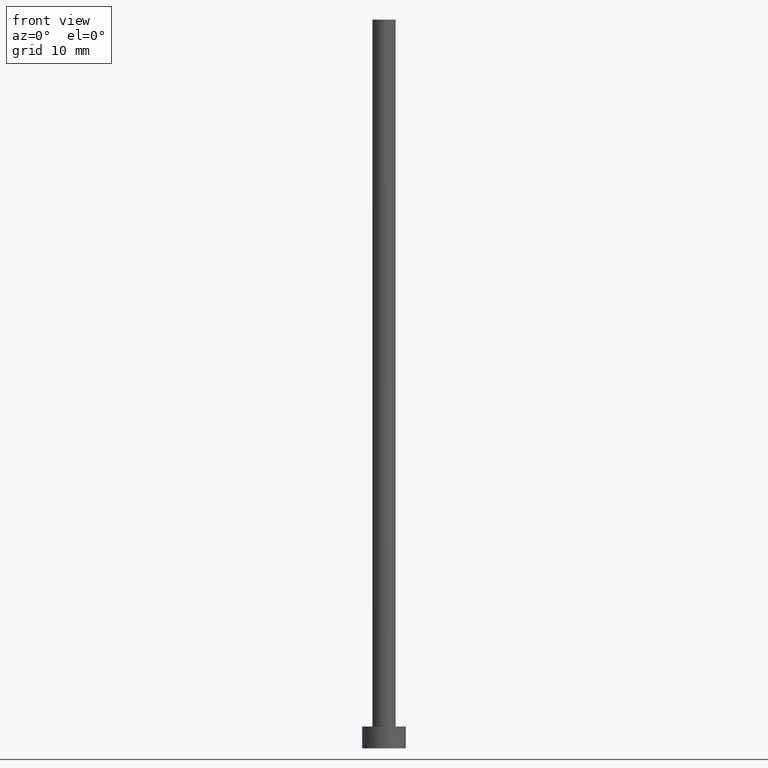
[diagram: clean part render]
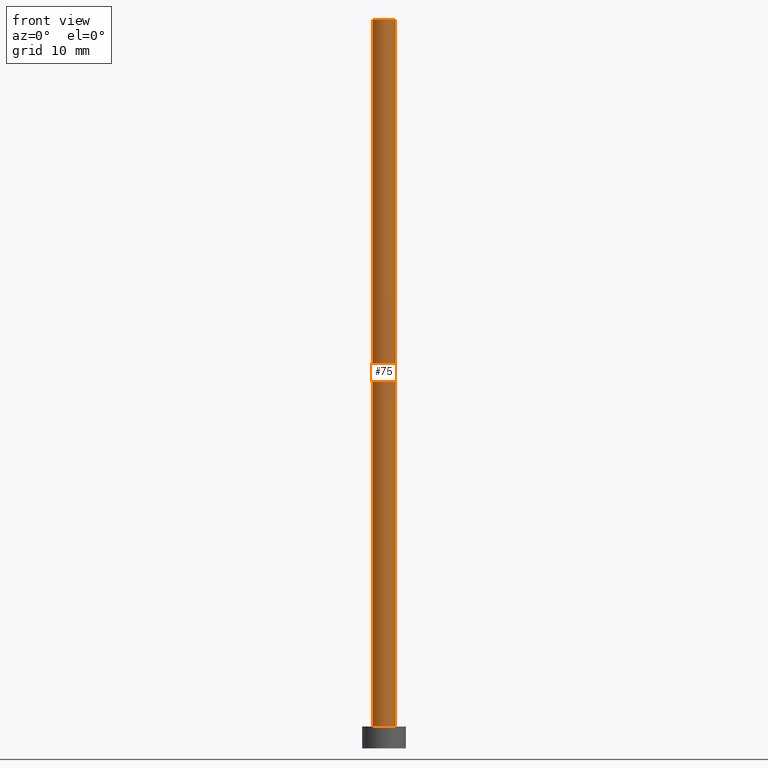
[diagram: same view with one face highlighted and labeled with its STEP entity id]
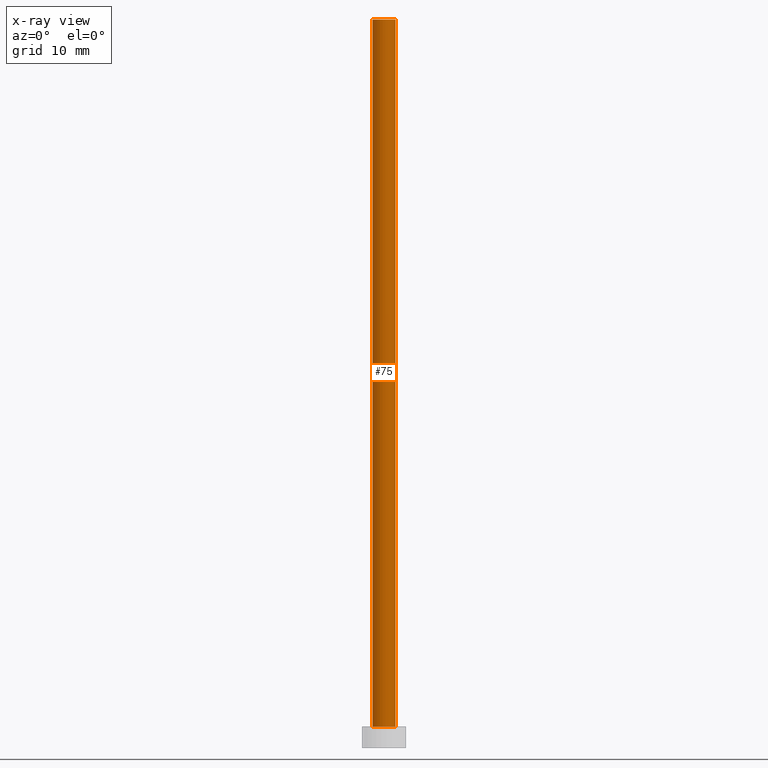
[diagram: x-ray of the same camera — body ghosted, the highlighted face saturated]
A machine part, front view. The second image highlights one B-rep face of the part: STEP entity #75.
The next image is the same camera in x-ray: the body ghosted, the highlighted face saturated — about 0% of this face is hidden behind the body in this view.
In plain terms, the highlighted cylindrical surface (edge-blend (fillet) strip) has radius 1.6 mm, axis along (-0, -0, -1).
Its self-contained STEP definition (entity closure, byte-faithful):
#1 = CARTESIAN_POINT ( 'NONE',  ( 0.000000000000000000, 0.000000000000000000, 3.000000000000000000 ) ) ;
#5 = LINE ( 'NONE', #207, #225 ) ;
#16 = DIRECTION ( 'NONE',  ( 0.000000000000000000, 0.000000000000000000, 1.000000000000000000 ) ) ;
#24 = VERTEX_POINT ( 'NONE', #160 ) ;
#29 = VERTEX_POINT ( 'NONE', #62 ) ;
#30 = AXIS2_PLACEMENT_3D ( 'NONE', #99, #64, #104 ) ;
#31 = CYLINDRICAL_SURFACE ( 'NONE', #30, 1.600000000000000089 ) ;
#47 = AXIS2_PLACEMENT_3D ( 'NONE', #193, #16, #237 ) ;
#52 = EDGE_CURVE ( 'NONE', #24, #161, #5, .T. ) ;
#58 = CIRCLE ( 'NONE', #189, 1.600000000000000089 ) ;
#62 = CARTESIAN_POINT ( 'NONE',  ( -1.600000000000000089, 0.000000000000000000, 3.000000000000000000 ) ) ;
#64 = DIRECTION ( 'NONE',  ( -0.000000000000000000, -0.000000000000000000, -1.000000000000000000 ) ) ;
#66 = ORIENTED_EDGE ( 'NONE', *, *, #196, .F. ) ;
#75 = ADVANCED_FACE ( 'NONE', ( #184 ), #31, .T. ) ;
#81 = VECTOR ( 'NONE', #128, 1000.000000000000000 ) ;
#86 = CIRCLE ( 'NONE', #47, 1.600000000000000089 ) ;
#88 = CARTESIAN_POINT ( 'NONE',  ( -1.600000000000000089, 0.000000000000000000, 100.0000000000000000 ) ) ;
#99 = CARTESIAN_POINT ( 'NONE',  ( 0.000000000000000000, 0.000000000000000000, 100.0000000000000000 ) ) ;
#103 = ORIENTED_EDGE ( 'NONE', *, *, #156, .T. ) ;
#104 = DIRECTION ( 'NONE',  ( -1.000000000000000000, 0.000000000000000000, 0.000000000000000000 ) ) ;
#110 = VERTEX_POINT ( 'NONE', #88 ) ;
#123 = DIRECTION ( 'NONE',  ( -0.000000000000000000, -0.000000000000000000, -1.000000000000000000 ) ) ;
#128 = DIRECTION ( 'NONE',  ( -0.000000000000000000, -0.000000000000000000, -1.000000000000000000 ) ) ;
#129 = LINE ( 'NONE', #233, #81 ) ;
#142 = ORIENTED_EDGE ( 'NONE', *, *, #222, .T. ) ;
#149 = DIRECTION ( 'NONE',  ( 0.000000000000000000, 0.000000000000000000, 1.000000000000000000 ) ) ;
#150 = DIRECTION ( 'NONE',  ( 1.000000000000000000, 0.000000000000000000, 0.000000000000000000 ) ) ;
#151 = CARTESIAN_POINT ( 'NONE',  ( 1.600000000000000089, 1.959434878635764737E-16, 3.000000000000000000 ) ) ;
#156 = EDGE_CURVE ( 'NONE', #29, #161, #58, .T. ) ;
#159 = ORIENTED_EDGE ( 'NONE', *, *, #52, .F. ) ;
#160 = CARTESIAN_POINT ( 'NONE',  ( 1.600000000000000089, 1.959434878635764737E-16, 100.0000000000000000 ) ) ;
#161 = VERTEX_POINT ( 'NONE', #151 ) ;
#162 = EDGE_LOOP ( 'NONE', ( #159, #66, #142, #103 ) ) ;
#184 = FACE_OUTER_BOUND ( 'NONE', #162, .T. ) ;
#189 = AXIS2_PLACEMENT_3D ( 'NONE', #1, #149, #150 ) ;
#193 = CARTESIAN_POINT ( 'NONE',  ( 0.000000000000000000, 0.000000000000000000, 100.0000000000000000 ) ) ;
#196 = EDGE_CURVE ( 'NONE', #110, #24, #86, .T. ) ;
#207 = CARTESIAN_POINT ( 'NONE',  ( 1.600000000000000089, 1.959434878635764737E-16, 100.0000000000000000 ) ) ;
#222 = EDGE_CURVE ( 'NONE', #110, #29, #129, .T. ) ;
#225 = VECTOR ( 'NONE', #123, 1000.000000000000000 ) ;
#233 = CARTESIAN_POINT ( 'NONE',  ( -1.600000000000000089, 0.000000000000000000, 100.0000000000000000 ) ) ;
#237 = DIRECTION ( 'NONE',  ( 1.000000000000000000, 0.000000000000000000, 0.000000000000000000 ) ) ;